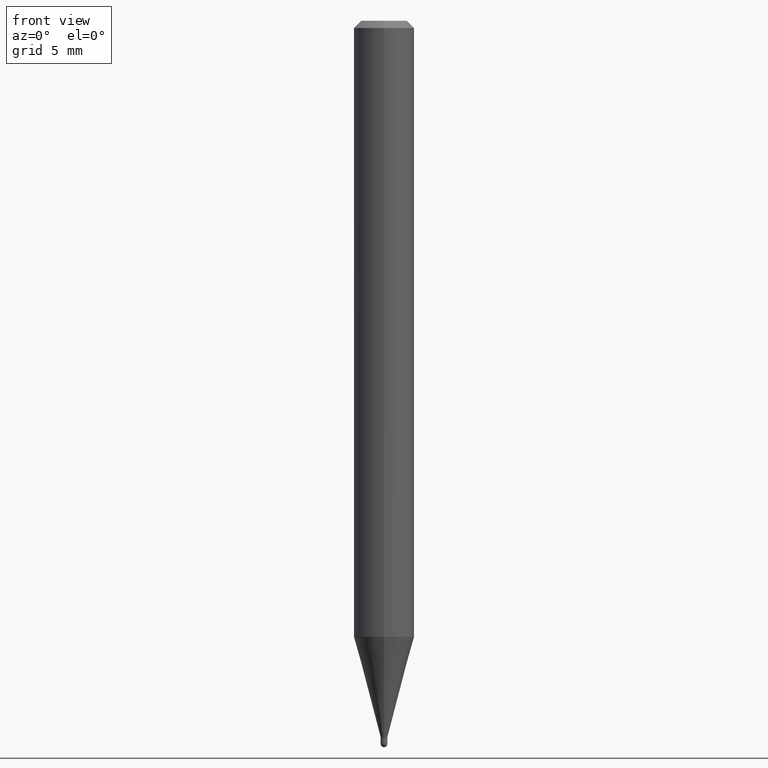
[diagram: clean part render]
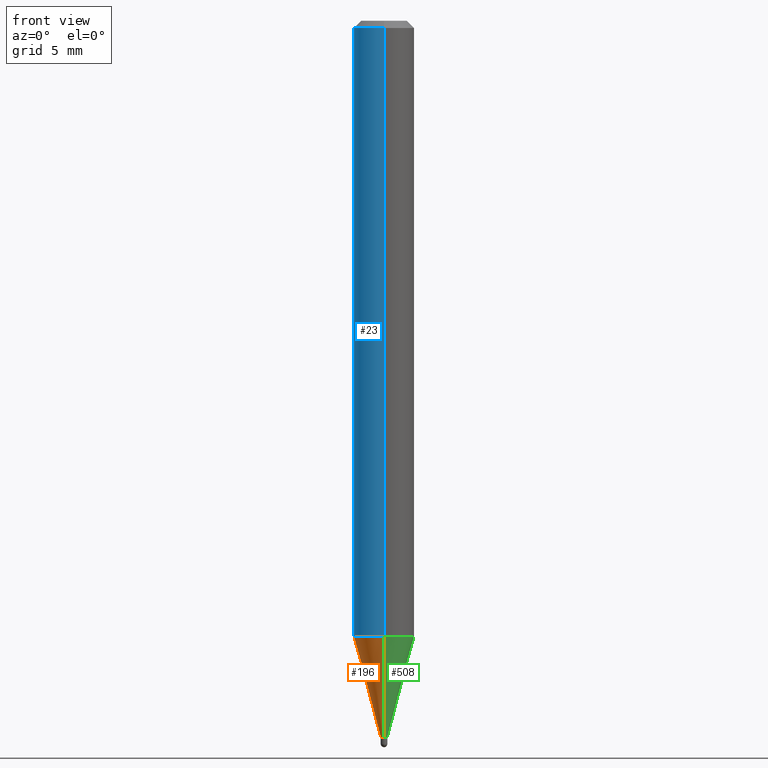
[diagram: same view with three faces highlighted in distinct colors, each labeled with its STEP entity id]
A machine part, front view with three faces highlighted in distinct colors.
Their STEP definitions:

[orange] entity #196 — the highlighted conical surface has half-angle 15 deg.
#16 = CARTESIAN_POINT ( 'NONE',  ( -4.364351673553606080E-16, -0.06250000000000445477, -1.271871180179934280 ) ) ;
#20 = ORIENTED_EDGE ( 'NONE', *, *, #113, .T. ) ;
#24 = DIRECTION ( 'NONE',  ( 1.839019923739649225E-15, 0.2588190451025318417, 0.9659258262890653146 ) ) ;
#28 = EDGE_CURVE ( 'NONE', #330, #40, #31, .T. ) ;
#31 = CIRCLE ( 'NONE', #199, 0.06250000000000000000 ) ;
#40 = VERTEX_POINT ( 'NONE', #16 ) ;
#50 = DIRECTION ( 'NONE',  ( -2.445484019338910371E-29, 3.491459552741062700E-15, 1.000000000000000000 ) ) ;
#58 = CONICAL_SURFACE ( 'NONE', #482, 0.007000000000000197904, 0.2617993877991574014 ) ;
#75 = CARTESIAN_POINT ( 'NONE',  ( 4.973799150324458355E-17, 0.006999999999995034500, -1.479000000000000092 ) ) ;
#80 = DIRECTION ( 'NONE',  ( -2.445484019338910371E-29, 3.491459552741062700E-15, 1.000000000000000000 ) ) ;
#108 = VECTOR ( 'NONE', #487, 39.37007874015748854 ) ;
#113 = EDGE_CURVE ( 'NONE', #451, #40, #140, .T. ) ;
#119 = CIRCLE ( 'NONE', #247, 0.007000000000000197904 ) ;
#140 = LINE ( 'NONE', #301, #108 ) ;
#165 = EDGE_CURVE ( 'NONE', #441, #330, #512, .T. ) ;
#192 = FACE_OUTER_BOUND ( 'NONE', #412, .T. ) ;
#196 = ADVANCED_FACE ( 'NONE', ( #192 ), #58, .T. ) ;
#197 = CARTESIAN_POINT ( 'NONE',  ( -4.888073874376907870E-17, -0.007000000000005362176, -1.479000000000000092 ) ) ;
#199 = AXIS2_PLACEMENT_3D ( 'NONE', #387, #50, #220 ) ;
#204 = DIRECTION ( 'NONE',  ( -6.982962677686266711E-15, -1.000000000000000000, 0.000000000000000000 ) ) ;
#220 = DIRECTION ( 'NONE',  ( -6.982962677686265922E-15, -1.000000000000000000, 4.370956789862821150E-15 ) ) ;
#229 = CARTESIAN_POINT ( 'NONE',  ( 3.616870864602248644E-29, -5.163868678504032059E-15, -1.479000000000000092 ) ) ;
#233 = DIRECTION ( 'NONE',  ( -2.445484019338910371E-29, 3.491459552741062700E-15, 1.000000000000000000 ) ) ;
#242 = ORIENTED_EDGE ( 'NONE', *, *, #165, .F. ) ;
#247 = AXIS2_PLACEMENT_3D ( 'NONE', #395, #80, #204 ) ;
#276 = CARTESIAN_POINT ( 'NONE',  ( 2.469136006766693000E-16, 0.006999999999995034500, -1.479000000000000092 ) ) ;
#290 = VECTOR ( 'NONE', #24, 39.37007874015748143 ) ;
#301 = CARTESIAN_POINT ( 'NONE',  ( -4.888073874376907870E-17, -0.007000000000005362176, -1.479000000000000092 ) ) ;
#330 = VERTEX_POINT ( 'NONE', #402 ) ;
#359 = EDGE_CURVE ( 'NONE', #441, #451, #119, .T. ) ;
#360 = DIRECTION ( 'NONE',  ( -6.982962677686266711E-15, -1.000000000000000000, 0.000000000000000000 ) ) ;
#375 = ORIENTED_EDGE ( 'NONE', *, *, #28, .F. ) ;
#387 = CARTESIAN_POINT ( 'NONE',  ( 3.110340645787750405E-29, -4.440686781895283064E-15, -1.271871180179934724 ) ) ;
#395 = CARTESIAN_POINT ( 'NONE',  ( 3.616870864602248644E-29, -5.163868678504032059E-15, -1.479000000000000092 ) ) ;
#402 = CARTESIAN_POINT ( 'NONE',  ( 4.440892098500935790E-16, 0.06249999999999555911, -1.271871180179934946 ) ) ;
#404 = ORIENTED_EDGE ( 'NONE', *, *, #359, .T. ) ;
#412 = EDGE_LOOP ( 'NONE', ( #242, #404, #20, #375 ) ) ;
#441 = VERTEX_POINT ( 'NONE', #276 ) ;
#451 = VERTEX_POINT ( 'NONE', #197 ) ;
#482 = AXIS2_PLACEMENT_3D ( 'NONE', #229, #233, #360 ) ;
#487 = DIRECTION ( 'NONE',  ( -1.807323732225378260E-15, -0.2588190451025250693, 0.9659258262890670910 ) ) ;
#512 = LINE ( 'NONE', #75, #290 ) ;

[blue] entity #23 — the highlighted cylindrical surface (edge-blend (fillet) strip) has radius 1.5875 mm, axis along (-0, 0, 1).
#9 = AXIS2_PLACEMENT_3D ( 'NONE', #489, #101, #377 ) ;
#16 = CARTESIAN_POINT ( 'NONE',  ( -4.364351673553606080E-16, -0.06250000000000445477, -1.271871180179934280 ) ) ;
#23 = ADVANCED_FACE ( 'NONE', ( #332 ), #251, .T. ) ;
#28 = EDGE_CURVE ( 'NONE', #330, #40, #31, .T. ) ;
#29 = LINE ( 'NONE', #117, #110 ) ;
#31 = CIRCLE ( 'NONE', #199, 0.06250000000000000000 ) ;
#40 = VERTEX_POINT ( 'NONE', #16 ) ;
#50 = DIRECTION ( 'NONE',  ( -2.445484019338910371E-29, 3.491459552741062700E-15, 1.000000000000000000 ) ) ;
#64 = CIRCLE ( 'NONE', #109, 0.06250000000000000000 ) ;
#66 = EDGE_CURVE ( 'NONE', #330, #90, #137, .T. ) ;
#90 = VERTEX_POINT ( 'NONE', #411 ) ;
#101 = DIRECTION ( 'NONE',  ( -2.445484019338910371E-29, 3.491459552741062700E-15, 1.000000000000000000 ) ) ;
#109 = AXIS2_PLACEMENT_3D ( 'NONE', #318, #155, #183 ) ;
#110 = VECTOR ( 'NONE', #420, 39.37007874015748143 ) ;
#117 = CARTESIAN_POINT ( 'NONE',  ( -4.364351673553916201E-16, -0.06250000000000000000, 2.182162220463164187E-16 ) ) ;
#123 = VERTEX_POINT ( 'NONE', #458 ) ;
#130 = ORIENTED_EDGE ( 'NONE', *, *, #28, .T. ) ;
#137 = LINE ( 'NONE', #343, #143 ) ;
#143 = VECTOR ( 'NONE', #335, 39.37007874015748143 ) ;
#155 = DIRECTION ( 'NONE',  ( -2.445484019338910371E-29, 3.491459552741062700E-15, 1.000000000000000000 ) ) ;
#176 = EDGE_CURVE ( 'NONE', #90, #123, #64, .T. ) ;
#183 = DIRECTION ( 'NONE',  ( -6.982962677686265922E-15, -1.000000000000000000, 3.483106191921935554E-15 ) ) ;
#199 = AXIS2_PLACEMENT_3D ( 'NONE', #387, #50, #220 ) ;
#208 = EDGE_CURVE ( 'NONE', #40, #123, #29, .T. ) ;
#220 = DIRECTION ( 'NONE',  ( -6.982962677686265922E-15, -1.000000000000000000, 4.370956789862821150E-15 ) ) ;
#251 = CYLINDRICAL_SURFACE ( 'NONE', #9, 0.06250000000000000000 ) ;
#288 = EDGE_LOOP ( 'NONE', ( #410, #130, #385, #417 ) ) ;
#318 = CARTESIAN_POINT ( 'NONE',  ( 3.668226029008381619E-31, -5.237189329111617148E-17, -0.01500000000000006710 ) ) ;
#330 = VERTEX_POINT ( 'NONE', #402 ) ;
#332 = FACE_OUTER_BOUND ( 'NONE', #288, .T. ) ;
#335 = DIRECTION ( 'NONE',  ( -2.445484019338910651E-29, 3.491459552741062700E-15, 1.000000000000000000 ) ) ;
#343 = CARTESIAN_POINT ( 'NONE',  ( 4.440892098500625669E-16, 0.06250000000000000000, -2.182162220463164187E-16 ) ) ;
#377 = DIRECTION ( 'NONE',  ( -6.982962677686265922E-15, -1.000000000000000000, 3.491459552741062700E-15 ) ) ;
#385 = ORIENTED_EDGE ( 'NONE', *, *, #208, .T. ) ;
#387 = CARTESIAN_POINT ( 'NONE',  ( 3.110340645787750405E-29, -4.440686781895283064E-15, -1.271871180179934724 ) ) ;
#402 = CARTESIAN_POINT ( 'NONE',  ( 4.440892098500935790E-16, 0.06249999999999555911, -1.271871180179934946 ) ) ;
#410 = ORIENTED_EDGE ( 'NONE', *, *, #66, .F. ) ;
#411 = CARTESIAN_POINT ( 'NONE',  ( 4.440892098500938748E-16, 0.06249999999999995143, -0.01500000000000028394 ) ) ;
#417 = ORIENTED_EDGE ( 'NONE', *, *, #176, .F. ) ;
#420 = DIRECTION ( 'NONE',  ( -2.445484019338910651E-29, 3.491459552741062700E-15, 1.000000000000000000 ) ) ;
#458 = CARTESIAN_POINT ( 'NONE',  ( -4.364351673553912750E-16, -0.06250000000000005551, -0.01499999999999984852 ) ) ;
#489 = CARTESIAN_POINT ( 'NONE',  ( 0.000000000000000000, 0.000000000000000000, 0.000000000000000000 ) ) ;

[green] entity #508 — the highlighted conical surface has half-angle 15 deg.
#16 = CARTESIAN_POINT ( 'NONE',  ( -4.364351673553606080E-16, -0.06250000000000445477, -1.271871180179934280 ) ) ;
#24 = DIRECTION ( 'NONE',  ( 1.839019923739649225E-15, 0.2588190451025318417, 0.9659258262890653146 ) ) ;
#32 = CIRCLE ( 'NONE', #102, 0.007000000000000197904 ) ;
#40 = VERTEX_POINT ( 'NONE', #16 ) ;
#60 = EDGE_LOOP ( 'NONE', ( #181, #381, #384, #439 ) ) ;
#75 = CARTESIAN_POINT ( 'NONE',  ( 4.973799150324458355E-17, 0.006999999999995034500, -1.479000000000000092 ) ) ;
#82 = AXIS2_PLACEMENT_3D ( 'NONE', #253, #461, #105 ) ;
#88 = DIRECTION ( 'NONE',  ( -2.445484019338910371E-29, 3.491459552741062700E-15, 1.000000000000000000 ) ) ;
#89 = EDGE_CURVE ( 'NONE', #40, #330, #303, .T. ) ;
#102 = AXIS2_PLACEMENT_3D ( 'NONE', #440, #88, #238 ) ;
#105 = DIRECTION ( 'NONE',  ( -6.982962677686266711E-15, -1.000000000000000000, 0.000000000000000000 ) ) ;
#108 = VECTOR ( 'NONE', #487, 39.37007874015748854 ) ;
#113 = EDGE_CURVE ( 'NONE', #451, #40, #140, .T. ) ;
#140 = LINE ( 'NONE', #301, #108 ) ;
#144 = CARTESIAN_POINT ( 'NONE',  ( 3.110340645787750405E-29, -4.440686781895283064E-15, -1.271871180179934724 ) ) ;
#165 = EDGE_CURVE ( 'NONE', #441, #330, #512, .T. ) ;
#181 = ORIENTED_EDGE ( 'NONE', *, *, #463, .T. ) ;
#197 = CARTESIAN_POINT ( 'NONE',  ( -4.888073874376907870E-17, -0.007000000000005362176, -1.479000000000000092 ) ) ;
#223 = DIRECTION ( 'NONE',  ( -6.982962677686265922E-15, -1.000000000000000000, 4.370956789862821150E-15 ) ) ;
#238 = DIRECTION ( 'NONE',  ( -6.982962677686266711E-15, -1.000000000000000000, 0.000000000000000000 ) ) ;
#253 = CARTESIAN_POINT ( 'NONE',  ( 3.616870864602248644E-29, -5.163868678504032059E-15, -1.479000000000000092 ) ) ;
#276 = CARTESIAN_POINT ( 'NONE',  ( 2.469136006766693000E-16, 0.006999999999995034500, -1.479000000000000092 ) ) ;
#290 = VECTOR ( 'NONE', #24, 39.37007874015748143 ) ;
#301 = CARTESIAN_POINT ( 'NONE',  ( -4.888073874376907870E-17, -0.007000000000005362176, -1.479000000000000092 ) ) ;
#303 = CIRCLE ( 'NONE', #427, 0.06250000000000000000 ) ;
#312 = CONICAL_SURFACE ( 'NONE', #82, 0.007000000000000197904, 0.2617993877991574014 ) ;
#330 = VERTEX_POINT ( 'NONE', #402 ) ;
#381 = ORIENTED_EDGE ( 'NONE', *, *, #165, .T. ) ;
#384 = ORIENTED_EDGE ( 'NONE', *, *, #89, .F. ) ;
#402 = CARTESIAN_POINT ( 'NONE',  ( 4.440892098500935790E-16, 0.06249999999999555911, -1.271871180179934946 ) ) ;
#413 = DIRECTION ( 'NONE',  ( -2.445484019338910371E-29, 3.491459552741062700E-15, 1.000000000000000000 ) ) ;
#427 = AXIS2_PLACEMENT_3D ( 'NONE', #144, #413, #223 ) ;
#439 = ORIENTED_EDGE ( 'NONE', *, *, #113, .F. ) ;
#440 = CARTESIAN_POINT ( 'NONE',  ( 3.616870864602248644E-29, -5.163868678504032059E-15, -1.479000000000000092 ) ) ;
#441 = VERTEX_POINT ( 'NONE', #276 ) ;
#451 = VERTEX_POINT ( 'NONE', #197 ) ;
#461 = DIRECTION ( 'NONE',  ( -2.445484019338910371E-29, 3.491459552741062700E-15, 1.000000000000000000 ) ) ;
#463 = EDGE_CURVE ( 'NONE', #451, #441, #32, .T. ) ;
#487 = DIRECTION ( 'NONE',  ( -1.807323732225378260E-15, -0.2588190451025250693, 0.9659258262890670910 ) ) ;
#494 = FACE_OUTER_BOUND ( 'NONE', #60, .T. ) ;
#508 = ADVANCED_FACE ( 'NONE', ( #494 ), #312, .T. ) ;
#512 = LINE ( 'NONE', #75, #290 ) ;